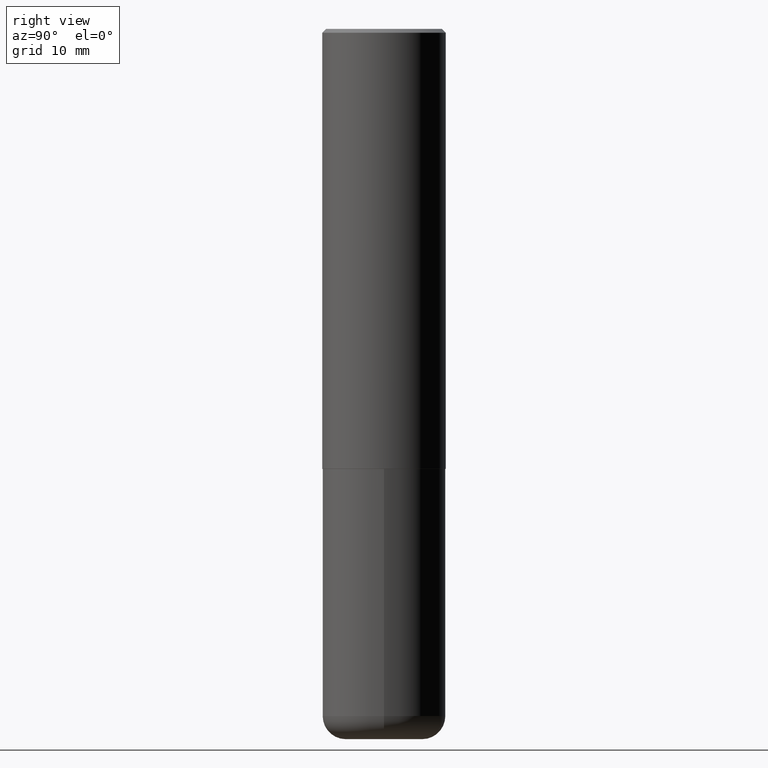
[diagram: clean part render]
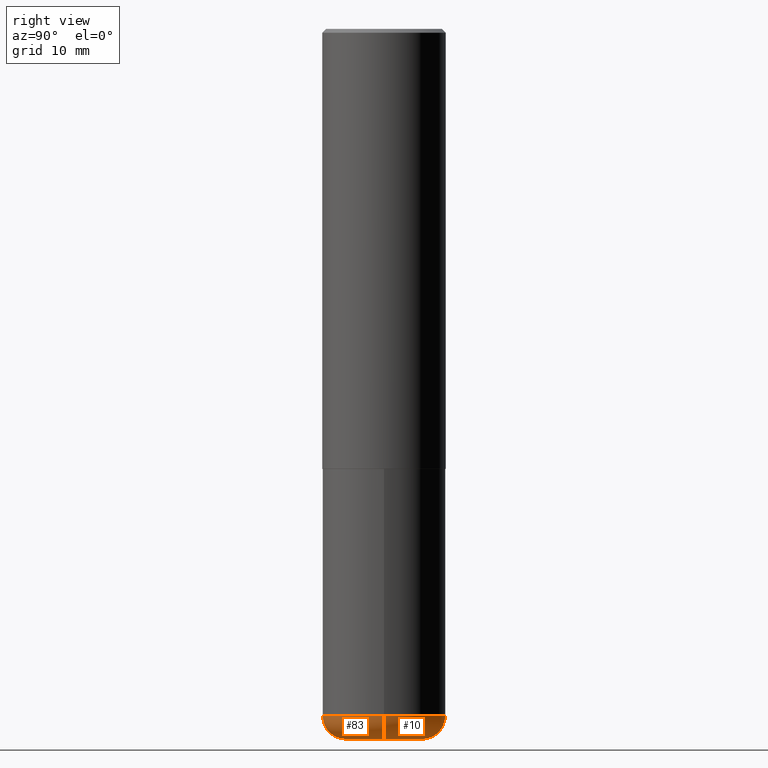
[diagram: same view with one multi-face feature highlighted, each face labeled with its STEP entity id]
A machine part, right view. The highlighted faces form ONE feature: a constant-radius fillet chain: 2 tangent blend faces with common blend radius 2.9997 mm. The faces share edges in the B-rep.
Their STEP definitions:
[1] entity #83 (Torus):
#6 = CIRCLE ( 'NONE', #146, 0.1968500000000000250 ) ;
#18 = CARTESIAN_POINT ( 'NONE',  ( 0.1968500000000000250, -1.402074161239241518E-14, -3.622000000000000330 ) ) ;
#19 = ORIENTED_EDGE ( 'NONE', *, *, #381, .F. ) ;
#22 = VERTEX_POINT ( 'NONE', #18 ) ;
#33 = VERTEX_POINT ( 'NONE', #300 ) ;
#44 = CIRCLE ( 'NONE', #278, 0.1181000000000002742 ) ;
#79 = ORIENTED_EDGE ( 'NONE', *, *, #254, .T. ) ;
#83 = ADVANCED_FACE ( 'NONE', ( #367 ), #375, .T. ) ;
#94 = CIRCLE ( 'NONE', #408, 0.1181000000000002742 ) ;
#105 = DIRECTION ( 'NONE',  ( -2.445468806185136597E-29, 3.491481338843145583E-15, 1.000000000000000000 ) ) ;
#128 = DIRECTION ( 'NONE',  ( -1.000000000000000000, 7.105427357601003436E-15, 0.000000000000000000 ) ) ;
#130 = DIRECTION ( 'NONE',  ( -2.445468806185136597E-29, 3.491481338843145583E-15, 1.000000000000000000 ) ) ;
#131 = VERTEX_POINT ( 'NONE', #279 ) ;
#146 = AXIS2_PLACEMENT_3D ( 'NONE', #223, #130, #412 ) ;
#161 = CARTESIAN_POINT ( 'NONE',  ( 0.1968500000000000250, -1.360839766627503947E-14, -3.503899999999999793 ) ) ;
#173 = ORIENTED_EDGE ( 'NONE', *, *, #260, .F. ) ;
#190 = AXIS2_PLACEMENT_3D ( 'NONE', #241, #332, #409 ) ;
#223 = CARTESIAN_POINT ( 'NONE',  ( 8.857488016002565597E-29, -1.264614540928987357E-14, -3.622000000000000330 ) ) ;
#227 = EDGE_CURVE ( 'NONE', #22, #33, #44, .T. ) ;
#241 = CARTESIAN_POINT ( 'NONE',  ( 8.568678149992099474E-29, -1.223380146317249786E-14, -3.503899999999999793 ) ) ;
#252 = CARTESIAN_POINT ( 'NONE',  ( -0.1968500000000000250, -1.083509808782873928E-14, -3.503899999999999793 ) ) ;
#254 = EDGE_CURVE ( 'NONE', #131, #22, #6, .T. ) ;
#258 = VERTEX_POINT ( 'NONE', #282 ) ;
#260 = EDGE_CURVE ( 'NONE', #131, #258, #94, .T. ) ;
#278 = AXIS2_PLACEMENT_3D ( 'NONE', #161, #343, #380 ) ;
#279 = CARTESIAN_POINT ( 'NONE',  ( -0.1968500000000000250, -1.062169457542108922E-14, -3.622000000000000330 ) ) ;
#282 = CARTESIAN_POINT ( 'NONE',  ( -0.3149500000000001743, -9.995947116896060296E-15, -3.503899999999999793 ) ) ;
#287 = ORIENTED_EDGE ( 'NONE', *, *, #227, .T. ) ;
#290 = CIRCLE ( 'NONE', #316, 0.3149500000000000077 ) ;
#293 = DIRECTION ( 'NONE',  ( 1.000000000000000000, -6.982962677686263555E-15, 0.000000000000000000 ) ) ;
#300 = CARTESIAN_POINT ( 'NONE',  ( 0.3149500000000001743, -1.443308555850978931E-14, -3.503899999999999793 ) ) ;
#316 = AXIS2_PLACEMENT_3D ( 'NONE', #362, #105, #293 ) ;
#332 = DIRECTION ( 'NONE',  ( -2.445468806185136597E-29, 3.491481338843145583E-15, 1.000000000000000000 ) ) ;
#343 = DIRECTION ( 'NONE',  ( -6.982962677686266711E-15, -1.000000000000000000, 3.491481338843145583E-15 ) ) ;
#362 = CARTESIAN_POINT ( 'NONE',  ( 8.568678149992099474E-29, -1.223380146317249786E-14, -3.503899999999999793 ) ) ;
#367 = FACE_OUTER_BOUND ( 'NONE', #403, .T. ) ;
#375 = TOROIDAL_SURFACE ( 'NONE', #190, 0.1968500000000000250, 0.1181000000000002881 ) ;
#380 = DIRECTION ( 'NONE',  ( 1.000000000000000000, -6.982962677686273021E-15, 0.000000000000000000 ) ) ;
#381 = EDGE_CURVE ( 'NONE', #258, #33, #290, .T. ) ;
#403 = EDGE_LOOP ( 'NONE', ( #173, #79, #287, #19 ) ) ;
#408 = AXIS2_PLACEMENT_3D ( 'NONE', #252, #415, #128 ) ;
#409 = DIRECTION ( 'NONE',  ( 1.000000000000000000, -6.982962677686269866E-15, 4.883557194083114022E-29 ) ) ;
#412 = DIRECTION ( 'NONE',  ( 1.000000000000000000, -6.982962677686267499E-15, 0.000000000000000000 ) ) ;
#415 = DIRECTION ( 'NONE',  ( 7.105427357601001859E-15, 1.000000000000000000, -3.491481338843145583E-15 ) ) ;
[2] entity #10 (Torus):
#5 = AXIS2_PLACEMENT_3D ( 'NONE', #89, #239, #58 ) ;
#10 = ADVANCED_FACE ( 'NONE', ( #270 ), #73, .T. ) ;
#18 = CARTESIAN_POINT ( 'NONE',  ( 0.1968500000000000250, -1.402074161239241518E-14, -3.622000000000000330 ) ) ;
#22 = VERTEX_POINT ( 'NONE', #18 ) ;
#25 = EDGE_CURVE ( 'NONE', #22, #131, #238, .T. ) ;
#33 = VERTEX_POINT ( 'NONE', #300 ) ;
#43 = AXIS2_PLACEMENT_3D ( 'NONE', #304, #61, #355 ) ;
#44 = CIRCLE ( 'NONE', #278, 0.1181000000000002742 ) ;
#58 = DIRECTION ( 'NONE',  ( 1.000000000000000000, -6.982962677686269866E-15, 4.883557194083114022E-29 ) ) ;
#61 = DIRECTION ( 'NONE',  ( -2.445468806185136597E-29, 3.491481338843145583E-15, 1.000000000000000000 ) ) ;
#73 = TOROIDAL_SURFACE ( 'NONE', #5, 0.1968500000000000250, 0.1181000000000002881 ) ;
#87 = ORIENTED_EDGE ( 'NONE', *, *, #260, .T. ) ;
#89 = CARTESIAN_POINT ( 'NONE',  ( 8.568678149992099474E-29, -1.223380146317249786E-14, -3.503899999999999793 ) ) ;
#94 = CIRCLE ( 'NONE', #408, 0.1181000000000002742 ) ;
#115 = EDGE_CURVE ( 'NONE', #33, #258, #325, .T. ) ;
#119 = DIRECTION ( 'NONE',  ( 1.000000000000000000, -6.982962677686267499E-15, 0.000000000000000000 ) ) ;
#128 = DIRECTION ( 'NONE',  ( -1.000000000000000000, 7.105427357601003436E-15, 0.000000000000000000 ) ) ;
#131 = VERTEX_POINT ( 'NONE', #279 ) ;
#161 = CARTESIAN_POINT ( 'NONE',  ( 0.1968500000000000250, -1.360839766627503947E-14, -3.503899999999999793 ) ) ;
#176 = ORIENTED_EDGE ( 'NONE', *, *, #25, .T. ) ;
#227 = EDGE_CURVE ( 'NONE', #22, #33, #44, .T. ) ;
#232 = AXIS2_PLACEMENT_3D ( 'NONE', #371, #273, #119 ) ;
#238 = CIRCLE ( 'NONE', #232, 0.1968500000000000250 ) ;
#239 = DIRECTION ( 'NONE',  ( -2.445468806185136597E-29, 3.491481338843145583E-15, 1.000000000000000000 ) ) ;
#245 = ORIENTED_EDGE ( 'NONE', *, *, #227, .F. ) ;
#252 = CARTESIAN_POINT ( 'NONE',  ( -0.1968500000000000250, -1.083509808782873928E-14, -3.503899999999999793 ) ) ;
#258 = VERTEX_POINT ( 'NONE', #282 ) ;
#260 = EDGE_CURVE ( 'NONE', #131, #258, #94, .T. ) ;
#270 = FACE_OUTER_BOUND ( 'NONE', #353, .T. ) ;
#273 = DIRECTION ( 'NONE',  ( -2.445468806185136597E-29, 3.491481338843145583E-15, 1.000000000000000000 ) ) ;
#278 = AXIS2_PLACEMENT_3D ( 'NONE', #161, #343, #380 ) ;
#279 = CARTESIAN_POINT ( 'NONE',  ( -0.1968500000000000250, -1.062169457542108922E-14, -3.622000000000000330 ) ) ;
#282 = CARTESIAN_POINT ( 'NONE',  ( -0.3149500000000001743, -9.995947116896060296E-15, -3.503899999999999793 ) ) ;
#300 = CARTESIAN_POINT ( 'NONE',  ( 0.3149500000000001743, -1.443308555850978931E-14, -3.503899999999999793 ) ) ;
#304 = CARTESIAN_POINT ( 'NONE',  ( 8.568678149992099474E-29, -1.223380146317249786E-14, -3.503899999999999793 ) ) ;
#325 = CIRCLE ( 'NONE', #43, 0.3149500000000000077 ) ;
#343 = DIRECTION ( 'NONE',  ( -6.982962677686266711E-15, -1.000000000000000000, 3.491481338843145583E-15 ) ) ;
#353 = EDGE_LOOP ( 'NONE', ( #176, #87, #378, #245 ) ) ;
#355 = DIRECTION ( 'NONE',  ( 1.000000000000000000, -6.982962677686263555E-15, 0.000000000000000000 ) ) ;
#371 = CARTESIAN_POINT ( 'NONE',  ( 8.857488016002565597E-29, -1.264614540928987357E-14, -3.622000000000000330 ) ) ;
#378 = ORIENTED_EDGE ( 'NONE', *, *, #115, .F. ) ;
#380 = DIRECTION ( 'NONE',  ( 1.000000000000000000, -6.982962677686273021E-15, 0.000000000000000000 ) ) ;
#408 = AXIS2_PLACEMENT_3D ( 'NONE', #252, #415, #128 ) ;
#415 = DIRECTION ( 'NONE',  ( 7.105427357601001859E-15, 1.000000000000000000, -3.491481338843145583E-15 ) ) ;